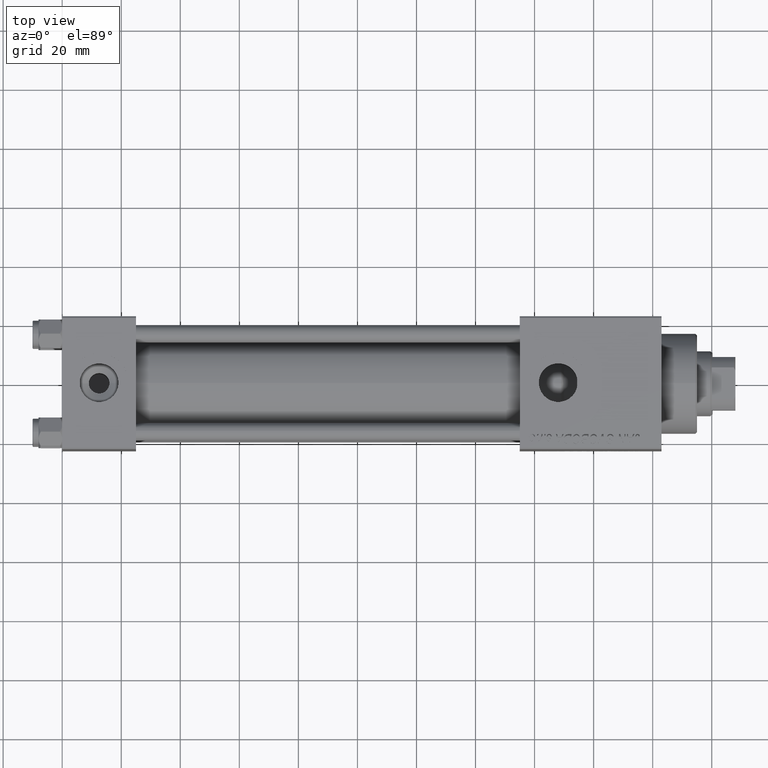
[diagram: clean part render]
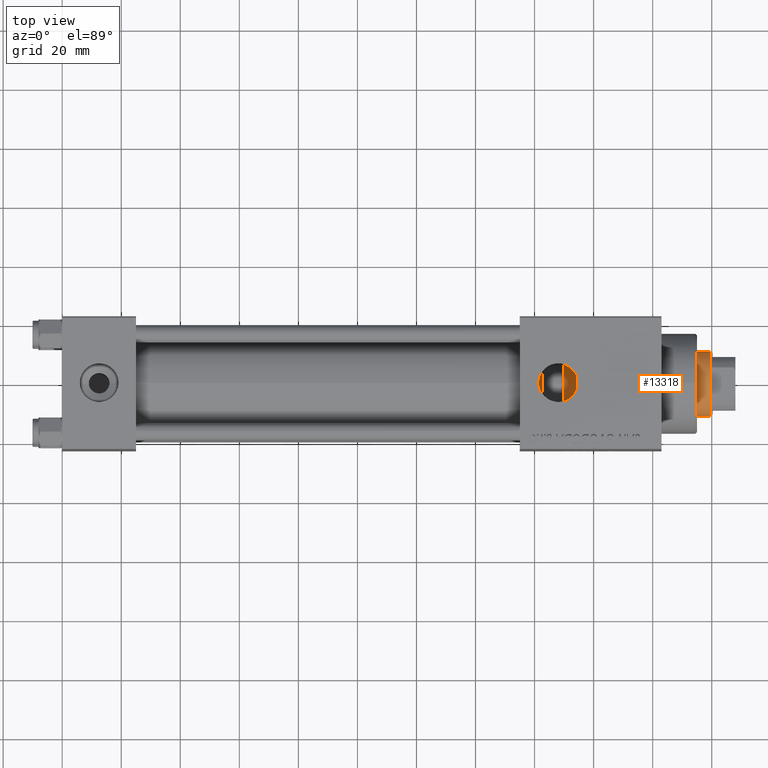
[diagram: same view with one face highlighted and labeled with its STEP entity id]
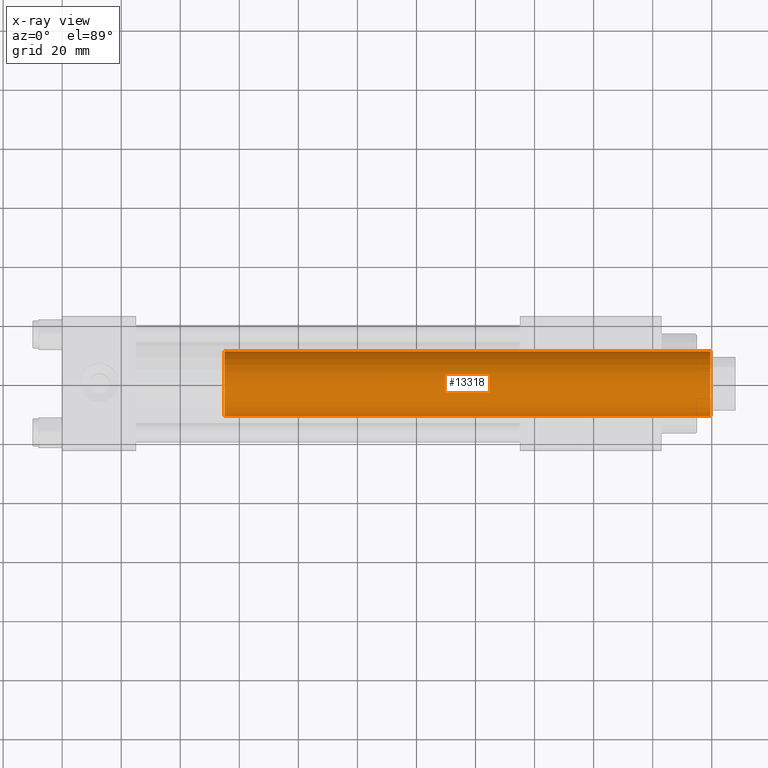
[diagram: x-ray of the same camera — body ghosted, the highlighted face saturated]
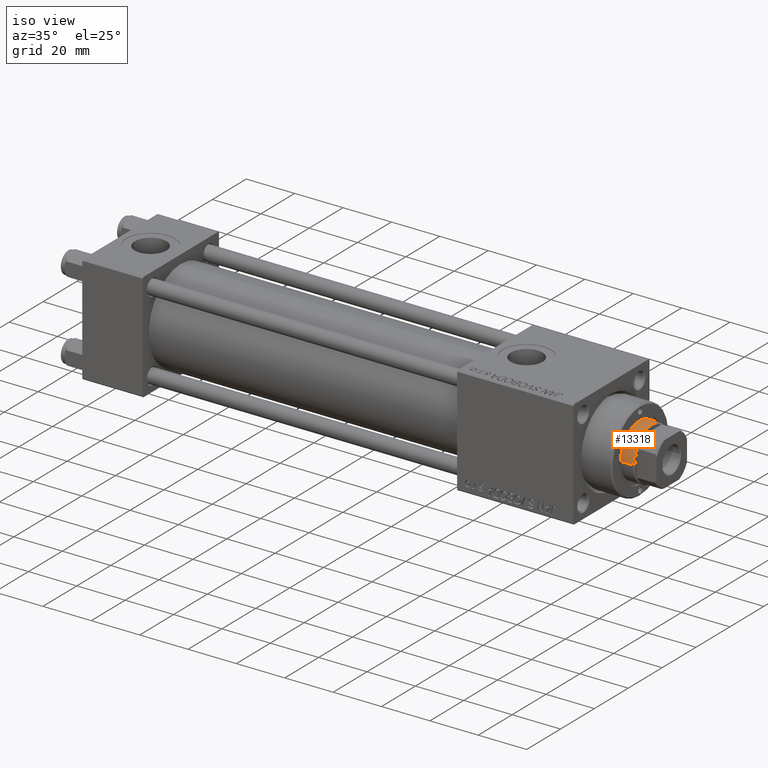
[diagram: same view with one face highlighted and labeled with its STEP entity id]
A machine part, top view. The second image highlights one B-rep face of the part: STEP entity #13318.
The next image is the same camera in x-ray: the body ghosted, the highlighted face saturated — about 0% of this face is hidden behind the body in this view.
A second angle (iso view) of the same face is appended — the face is thin or edge-on in the first view.
In plain terms, the highlighted cylindrical surface (edge-blend (fillet) strip) has radius 11 mm, axis along (-1, 0, 0).
Its self-contained STEP definition (entity closure, byte-faithful):
#747 = CIRCLE ( 'NONE', #27559, 11.00000000000000000 ) ;
#1146 = CARTESIAN_POINT ( 'NONE',  ( 0.000000000000000000, 0.000000000000000000, 30.00000000000000000 ) ) ;
#1682 = DIRECTION ( 'NONE',  ( 0.000000000000000000, 0.000000000000000000, 1.000000000000000000 ) ) ;
#1748 = FACE_OUTER_BOUND ( 'NONE', #45581, .T. ) ;
#2261 = DIRECTION ( 'NONE',  ( 1.000000000000000000, 0.000000000000000000, 0.000000000000000000 ) ) ;
#2792 = DIRECTION ( 'NONE',  ( 0.000000000000000000, 0.000000000000000000, -1.000000000000000000 ) ) ;
#3155 = VERTEX_POINT ( 'NONE', #13067 ) ;
#3361 = CIRCLE ( 'NONE', #33598, 11.00000000000000000 ) ;
#5329 = EDGE_CURVE ( 'NONE', #36622, #3155, #3361, .T. ) ;
#8669 = CARTESIAN_POINT ( 'NONE',  ( -11.00000000000000000, 0.000000000000000000, 195.0000000000000000 ) ) ;
#12029 = ORIENTED_EDGE ( 'NONE', *, *, #49366, .F. ) ;
#12141 = VERTEX_POINT ( 'NONE', #18319 ) ;
#13032 = AXIS2_PLACEMENT_3D ( 'NONE', #38284, #13645, #46169 ) ;
#13067 = CARTESIAN_POINT ( 'NONE',  ( -11.00000000000000000, 0.000000000000000000, 194.5000000000000284 ) ) ;
#13241 = LINE ( 'NONE', #8669, #25510 ) ;
#13318 = ADVANCED_FACE ( 'NONE', ( #1748 ), #50756, .T. ) ;
#13436 = LINE ( 'NONE', #34010, #41849 ) ;
#13645 = DIRECTION ( 'NONE',  ( -0.000000000000000000, -0.000000000000000000, -1.000000000000000000 ) ) ;
#17022 = CARTESIAN_POINT ( 'NONE',  ( -11.00000000000000000, 0.000000000000000000, 30.00000000000000000 ) ) ;
#17639 = DIRECTION ( 'NONE',  ( 1.000000000000000000, 0.000000000000000000, 0.000000000000000000 ) ) ;
#18319 = CARTESIAN_POINT ( 'NONE',  ( 11.00000000000000000, 1.347111479062088405E-15, 30.00000000000000000 ) ) ;
#25510 = VECTOR ( 'NONE', #33818, 1000.000000000000000 ) ;
#25818 = ORIENTED_EDGE ( 'NONE', *, *, #48565, .T. ) ;
#26899 = CARTESIAN_POINT ( 'NONE',  ( 0.000000000000000000, 0.000000000000000000, 194.5000000000000284 ) ) ;
#27559 = AXIS2_PLACEMENT_3D ( 'NONE', #1146, #1682, #17639 ) ;
#28282 = ORIENTED_EDGE ( 'NONE', *, *, #5329, .T. ) ;
#29418 = EDGE_CURVE ( 'NONE', #39199, #12141, #747, .T. ) ;
#29677 = DIRECTION ( 'NONE',  ( -0.000000000000000000, -0.000000000000000000, -1.000000000000000000 ) ) ;
#32592 = ORIENTED_EDGE ( 'NONE', *, *, #29418, .T. ) ;
#33598 = AXIS2_PLACEMENT_3D ( 'NONE', #26899, #2792, #2261 ) ;
#33818 = DIRECTION ( 'NONE',  ( -0.000000000000000000, -0.000000000000000000, -1.000000000000000000 ) ) ;
#34010 = CARTESIAN_POINT ( 'NONE',  ( 11.00000000000000000, 1.347111479062088405E-15, 195.0000000000000000 ) ) ;
#36622 = VERTEX_POINT ( 'NONE', #40314 ) ;
#38284 = CARTESIAN_POINT ( 'NONE',  ( 0.000000000000000000, 0.000000000000000000, 195.0000000000000000 ) ) ;
#39199 = VERTEX_POINT ( 'NONE', #17022 ) ;
#40314 = CARTESIAN_POINT ( 'NONE',  ( 11.00000000000000000, 1.347111479062088405E-15, 194.5000000000000284 ) ) ;
#41849 = VECTOR ( 'NONE', #29677, 1000.000000000000000 ) ;
#45581 = EDGE_LOOP ( 'NONE', ( #12029, #28282, #25818, #32592 ) ) ;
#46169 = DIRECTION ( 'NONE',  ( -1.000000000000000000, 0.000000000000000000, 0.000000000000000000 ) ) ;
#48565 = EDGE_CURVE ( 'NONE', #3155, #39199, #13241, .T. ) ;
#49366 = EDGE_CURVE ( 'NONE', #36622, #12141, #13436, .T. ) ;
#50756 = CYLINDRICAL_SURFACE ( 'NONE', #13032, 11.00000000000000000 ) ;